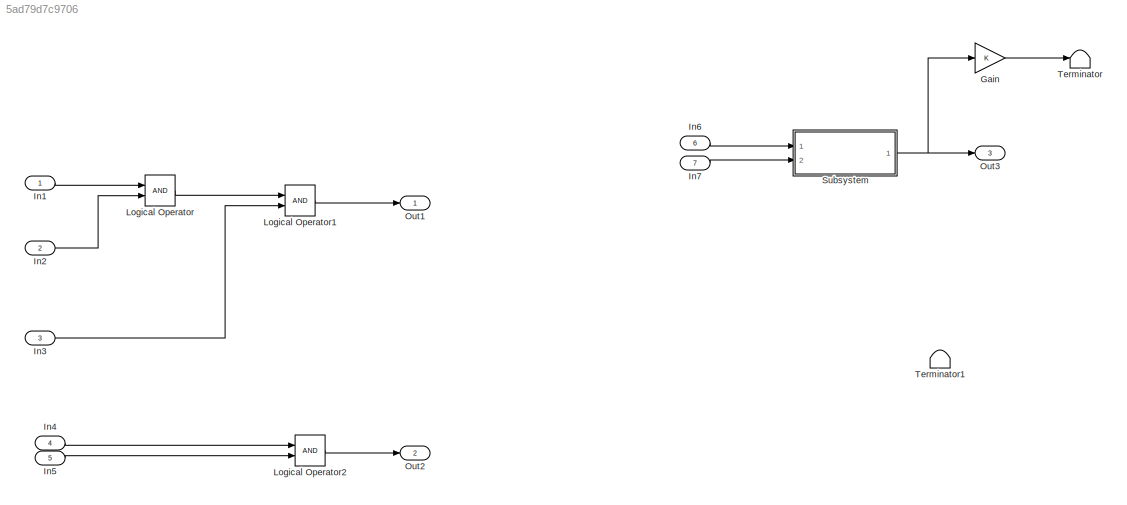
MODEL slx_5ad79d7c9706
KIND model
CONFIG AbsTol = auto
CONFIG EnableMultiTasking = off
CONFIG FixedStep = auto
CONFIG MaxStep = auto
CONFIG MinStep = auto
CONFIG RelTol = 1e-3
CONFIG SampleTimeConstraint = Unconstrained
CONFIG Solver = VariableStepAuto
CONFIG SolverName = VariableStepAuto
CONFIG StartTime = 0.0
CONFIG StopTime = 10.0
BLOCK [Gain] Gain
  OutDataTypeStr = Inherit: Inherit via internal rule
  ParamDataTypeStr = Inherit: Inherit via internal rule
  SaturateOnIntegerOverflow = off
BLOCK [Inport] In1
  IconDisplay = Port number
BLOCK [Inport] In2
  IconDisplay = Port number
  Port = 2
BLOCK [Inport] In3
  IconDisplay = Port number
  Port = 3
BLOCK [Inport] In4
  IconDisplay = Port number
  Port = 4
BLOCK [Inport] In5
  IconDisplay = Port number
  Port = 5
BLOCK [Inport] In6
  IconDisplay = Port number
  Port = 6
BLOCK [Inport] In7
  IconDisplay = Port number
  Port = 7
BLOCK [Logic] Logical Operator
  AllPortsSameDT = off
  OutDataTypeStr = boolean
  Ports = [2, 1]
BLOCK [Logic] Logical Operator1
  AllPortsSameDT = off
  OutDataTypeStr = boolean
  Ports = [2, 1]
BLOCK [Logic] Logical Operator2
  AllPortsSameDT = off
  OutDataTypeStr = boolean
  Ports = [2, 1]
BLOCK [Outport] Out1
  IconDisplay = Port number
BLOCK [Outport] Out2
  IconDisplay = Port number
  Port = 2
BLOCK [Outport] Out3
  IconDisplay = Port number
  Port = 3
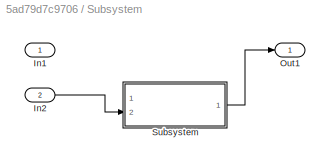
BLOCK [SubSystem] Subsystem
  Ports = [2, 1]
  RequestExecContextInheritance = off
  Variant = off
BLOCK [Inport] Subsystem/In1
  IconDisplay = Port number
BLOCK [Inport] Subsystem/In2
  IconDisplay = Port number
  Port = 2
BLOCK [Outport] Subsystem/Out1
  IconDisplay = Port number
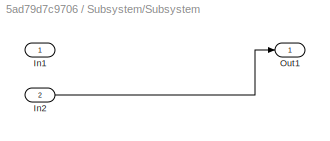
BLOCK [SubSystem] Subsystem/Subsystem
  Ports = [2, 1]
  RequestExecContextInheritance = off
  Variant = off
BLOCK [Inport] Subsystem/Subsystem/In1
  IconDisplay = Port number
BLOCK [Inport] Subsystem/Subsystem/In2
  IconDisplay = Port number
  Port = 2
BLOCK [Outport] Subsystem/Subsystem/Out1
  IconDisplay = Port number
BLOCK [Terminator] Terminator
BLOCK [Terminator] Terminator1
LINE Gain:1 -> Terminator:1
LINE In1:1 -> Logical Operator:1
LINE In2:1 -> Logical Operator:2
LINE In3:1 -> Logical Operator1:2
LINE In4:1 -> Logical Operator2:1
LINE In5:1 -> Logical Operator2:2
LINE In6:1 -> Subsystem:1
LINE In7:1 -> Subsystem:2
LINE Logical Operator1:1 -> Out1:1
LINE Logical Operator2:1 -> Out2:1
LINE Logical Operator:1 -> Logical Operator1:1
LINE Subsystem/In2:1 -> Subsystem/Subsystem:2
LINE Subsystem/Subsystem/In2:1 -> Subsystem/Subsystem/Out1:1
LINE Subsystem/Subsystem:1 -> Subsystem/Out1:1
NET Subsystem:1 -> Gain:1, Out3:1
note: NET lines group one-source signal fan-out (src -> all destinations, sorted); 1:1 wires keep LINE
